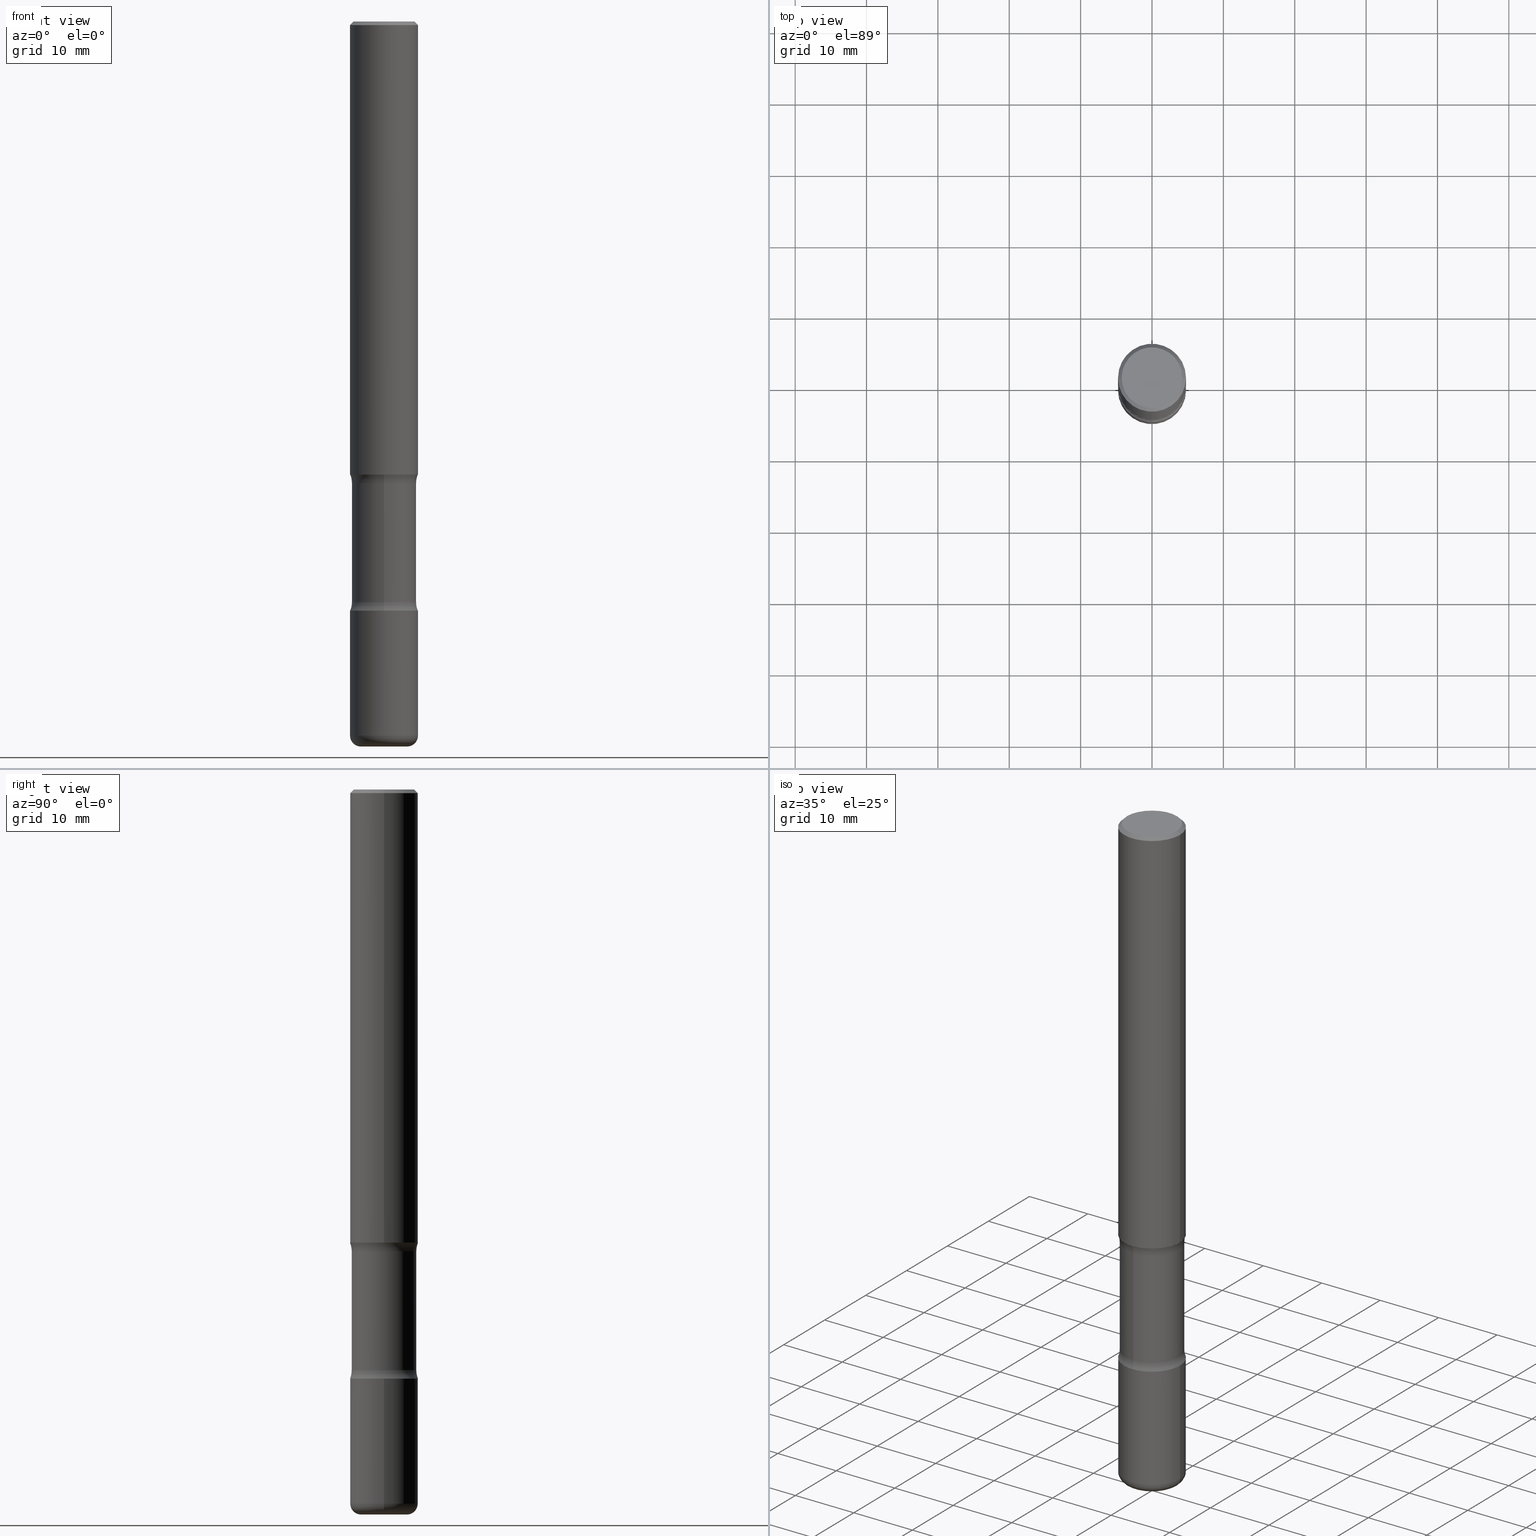
[diagram: canonical four-view strip — front | top / right | iso, engineering-drawing reading convention]
A machine part, canonical four-view strip (front | top / right | iso — engineering-drawing reading convention). The complete STEP part file that produces these views, byte-faithful:
ISO-10303-21;
HEADER;
FILE_DESCRIPTION (( 'STEP AP203' ),
    '1' );
FILE_NAME ('37847.STEP',
    '2024-03-02T00:45:37',
    ( '' ),
    ( '' ),
    'SwSTEP 2.0',
    'SolidWorks 2023',
    '' );
FILE_SCHEMA (( 'CONFIG_CONTROL_DESIGN' ));
ENDSEC;

DATA;
#1 = EDGE_LOOP ( 'NONE', ( #232, #52, #144, #310 ) ) ;
#2 = ADVANCED_FACE ( 'NONE', ( #99 ), #320, .F. ) ;
#3 = VERTEX_POINT ( 'NONE', #521 ) ;
#4 = EDGE_LOOP ( 'NONE', ( #472, #396 ) ) ;
#5 = ORIENTED_EDGE ( 'NONE', *, *, #162, .T. ) ;
#6 = APPLICATION_CONTEXT ( 'configuration controlled 3d designs of mechanical parts and assemblies' ) ;
#7 = VERTEX_POINT ( 'NONE', #134 ) ;
#8 = PRODUCT_DEFINITION_FORMATION_WITH_SPECIFIED_SOURCE ( 'ANY', '', #39, .NOT_KNOWN. ) ;
#9 = CARTESIAN_POINT ( 'NONE',  ( 2.116710561673727694E-15, 0.3031249999999888201, -3.202504112020092997 ) ) ;
#10 = DIRECTION ( 'NONE',  ( 6.982962677686266711E-15, 1.000000000000000000, -2.913971193241878794E-15 ) ) ;
#11 = CARTESIAN_POINT ( 'NONE',  ( -1.286343374582083282E-15, -0.1875000000000114075, -3.250000000000000000 ) ) ;
#12 = DATE_AND_TIME ( #213, #266 ) ;
#13 = ORIENTED_EDGE ( 'NONE', *, *, #151, .T. ) ;
#14 = CARTESIAN_POINT ( 'NONE',  ( -0.1275000000000001132, -1.285049448694786508E-14, -3.939999999999999947 ) ) ;
#15 = DIRECTION ( 'NONE',  ( -2.445468806185136597E-29, 3.491481338843145583E-15, 1.000000000000000000 ) ) ;
#16 = CARTESIAN_POINT ( 'NONE',  ( 6.158285255761511137E-29, -8.996978653423909512E-15, -2.547495887979908780 ) ) ;
#17 = PERSON_AND_ORGANIZATION ( #428, #464 ) ;
#18 = EDGE_LOOP ( 'NONE', ( #339, #273, #377, #417 ) ) ;
#19 = CARTESIAN_POINT ( 'NONE',  ( -0.1875000000000000833, -1.121960778359092137E-14, -3.250000000000000444 ) ) ;
#20 = CARTESIAN_POINT ( 'NONE',  ( 1.243840226962927197E-15, 0.1781249999999909572, -2.547495887979909224 ) ) ;
#21 = LINE ( 'NONE', #207, #400 ) ;
#22 = CIRCLE ( 'NONE', #308, 0.05999999999999995615 ) ;
#23 = AXIS2_PLACEMENT_3D ( 'NONE', #41, #170, #127 ) ;
#24 = APPROVAL ( #216, 'UNSPECIFIED' ) ;
#25 = DIRECTION ( 'NONE',  ( 2.558681667686983511E-29, -3.329354077496592524E-15, -1.000000000000000000 ) ) ;
#26 = PERSON_AND_ORGANIZATION ( #428, #464 ) ;
#27 = ORIENTED_EDGE ( 'NONE', *, *, #306, .T. ) ;
#28 = DIRECTION ( 'NONE',  ( 2.558681667686983511E-29, -3.329354077496592524E-15, -1.000000000000000000 ) ) ;
#29 = ORIENTED_EDGE ( 'NONE', *, *, #268, .F. ) ;
#30 = CARTESIAN_POINT ( 'NONE',  ( 9.635147096369438236E-29, -1.375643647504199401E-14, -3.939999999999999947 ) ) ;
#31 = DATE_TIME_ROLE ( 'classification_date' ) ;
#32 = ORIENTED_EDGE ( 'NONE', *, *, #510, .F. ) ;
#33 = ADVANCED_FACE ( 'NONE', ( #359 ), #236, .T. ) ;
#34 = ORIENTED_EDGE ( 'NONE', *, *, #264, .F. ) ;
#35 = VECTOR ( 'NONE', #255, 39.37007874015748143 ) ;
#36 = FACE_OUTER_BOUND ( 'NONE', #100, .T. ) ;
#37 = CARTESIAN_POINT ( 'NONE',  ( 9.635147096369438236E-29, -1.375643647504199401E-14, -3.939999999999999947 ) ) ;
#38 = ADVANCED_FACE ( 'NONE', ( #57 ), #379, .T. ) ;
#39 = PRODUCT ( '37847', '37847', '', ( #90 ) ) ;
#40 = CIRCLE ( 'NONE', #470, 0.1875000000000001110 ) ;
#41 = CARTESIAN_POINT ( 'NONE',  ( 0.000000000000000000, 0.000000000000000000, 0.000000000000000000 ) ) ;
#42 = CONICAL_SURFACE ( 'NONE', #89, 0.1874999999999999167, 0.7853981633974472798 ) ;
#43 = ADVANCED_BREP_SHAPE_REPRESENTATION ( '37847', ( #335, #131, #318, #499 ), #388 ) ;
#44 = DIRECTION ( 'NONE',  ( 1.000000000000000000, -6.982962677686265922E-15, 0.000000000000000000 ) ) ;
#45 = ADVANCED_FACE ( 'NONE', ( #482 ), #91, .T. ) ;
#46 = APPLICATION_PROTOCOL_DEFINITION ( 'international standard', 'config_control_design', 1994, #75 ) ;
#47 = AXIS2_PLACEMENT_3D ( 'NONE', #350, #525, #233 ) ;
#48 = DIRECTION ( 'NONE',  ( -2.445468806185136597E-29, 3.491481338843145583E-15, 1.000000000000000000 ) ) ;
#49 = CC_DESIGN_APPROVAL ( #133, ( #237 ) ) ;
#50 = ORIENTED_EDGE ( 'NONE', *, *, #347, .F. ) ;
#51 = DIRECTION ( 'NONE',  ( -2.445468806185136597E-29, 3.491481338843145583E-15, 1.000000000000000000 ) ) ;
#52 = ORIENTED_EDGE ( 'NONE', *, *, #264, .T. ) ;
#53 = DIRECTION ( 'NONE',  ( 1.000000000000000000, -6.982962677686265922E-15, 0.000000000000000000 ) ) ;
#54 = ORIENTED_EDGE ( 'NONE', *, *, #290, .T. ) ;
#55 = DIMENSIONAL_EXPONENTS ( 1.000000000000000000, 0.000000000000000000, 0.000000000000000000, 0.000000000000000000, 0.000000000000000000, 0.000000000000000000, 0.000000000000000000 ) ;
#56 = DIRECTION ( 'NONE',  ( 6.982962677686265133E-15, 1.000000000000000000, -3.067338098149349483E-15 ) ) ;
#57 = FACE_OUTER_BOUND ( 'NONE', #257, .T. ) ;
#58 = SHAPE_DEFINITION_REPRESENTATION ( #174, #43 ) ;
#59 = AXIS2_PLACEMENT_3D ( 'NONE', #513, #397, #10 ) ;
#60 = ORIENTED_EDGE ( 'NONE', *, *, #429, .F. ) ;
#61 = DIRECTION ( 'NONE',  ( 2.558681667686983511E-29, -3.329354077496592524E-15, -1.000000000000000000 ) ) ;
#62 = CARTESIAN_POINT ( 'NONE',  ( 1.309305502066255275E-15, 0.1874999999999887867, -3.250000000000001332 ) ) ;
#63 = APPROVAL_DATE_TIME ( #545, #24 ) ;
#64 = EDGE_CURVE ( 'NONE', #432, #272, #40, .T. ) ;
#65 = CARTESIAN_POINT ( 'NONE',  ( 0.1874999999999999167, -1.356173001359024677E-15, -0.02000000000000006981 ) ) ;
#66 = DIRECTION ( 'NONE',  ( 2.438088387897960049E-29, -3.491481338843145188E-15, -1.000000000000000000 ) ) ;
#67 = APPROVAL_DATE_TIME ( #342, #430 ) ;
#68 = ORIENTED_EDGE ( 'NONE', *, *, #516, .F. ) ;
#69 = EDGE_CURVE ( 'NONE', #234, #304, #325, .T. ) ;
#70 = DIRECTION ( 'NONE',  ( 2.558681667686983511E-29, -3.329354077496592524E-15, -1.000000000000000000 ) ) ;
#71 = TOROIDAL_SURFACE ( 'NONE', #317, 0.3031249999999999778, 0.1250000000000000278 ) ;
#72 = DIRECTION ( 'NONE',  ( 6.982962677686266711E-15, 1.000000000000000000, -2.913971193241879583E-15 ) ) ;
#73 = CARTESIAN_POINT ( 'NONE',  ( 7.947773620101696182E-29, -1.134731435124022600E-14, -3.250000000000000444 ) ) ;
#74 = ORIENTED_EDGE ( 'NONE', *, *, #425, .F. ) ;
#75 = APPLICATION_CONTEXT ( 'configuration controlled 3d designs of mechanical parts and assemblies' ) ;
#76 = ORIENTED_EDGE ( 'NONE', *, *, #109, .F. ) ;
#77 = CC_DESIGN_DATE_AND_TIME_ASSIGNMENT ( #148, #31, ( #514 ) ) ;
#78 = CARTESIAN_POINT ( 'NONE',  ( -0.1874999999999999167, 1.239475875289311118E-15, -0.02000000000000006981 ) ) ;
#79 = CARTESIAN_POINT ( 'NONE',  ( 4.890937612370289799E-31, -6.982962677686315028E-17, -0.02000000000000006981 ) ) ;
#80 = CLOSED_SHELL ( 'NONE', ( #139, #481, #33, #414, #274, #227 ) ) ;
#81 = AXIS2_PLACEMENT_3D ( 'NONE', #555, #466, #181 ) ;
#82 = CC_DESIGN_APPROVAL ( #430, ( #514 ) ) ;
#83 = CYLINDRICAL_SURFACE ( 'NONE', #433, 0.1875000000000001110 ) ;
#84 = ADVANCED_FACE ( 'NONE', ( #191 ), #106, .F. ) ;
#85 = DIRECTION ( 'NONE',  ( -1.000000000000000000, 6.982962677686265922E-15, -4.883557194083112901E-29 ) ) ;
#86 = ADVANCED_FACE ( 'NONE', ( #474 ), #552, .F. ) ;
#87 = AXIS2_PLACEMENT_3D ( 'NONE', #294, #495, #72 ) ;
#88 =( LENGTH_UNIT ( ) NAMED_UNIT ( * ) SI_UNIT ( $, .METRE. ) );
#89 = AXIS2_PLACEMENT_3D ( 'NONE', #79, #344, #463 ) ;
#90 = MECHANICAL_CONTEXT ( 'NONE', #75, 'mechanical' ) ;
#91 = PLANE ( 'NONE',  #258 ) ;
#92 = EDGE_LOOP ( 'NONE', ( #448, #413, #492, #97 ) ) ;
#93 = DIRECTION ( 'NONE',  ( -2.445468806185136597E-29, 3.491481338843145583E-15, 1.000000000000000000 ) ) ;
#94 = ORIENTED_EDGE ( 'NONE', *, *, #69, .T. ) ;
#95 = CIRCLE ( 'NONE', #410, 0.1781249999999999223 ) ;
#96 = DIRECTION ( 'NONE',  ( 2.558681667686983511E-29, -3.329354077496592524E-15, -1.000000000000000000 ) ) ;
#97 = ORIENTED_EDGE ( 'NONE', *, *, #306, .F. ) ;
#98 = PERSON_AND_ORGANIZATION ( #428, #464 ) ;
#99 = FACE_OUTER_BOUND ( 'NONE', #179, .T. ) ;
#100 = EDGE_LOOP ( 'NONE', ( #479, #542, #523, #138 ) ) ;
#101 = CARTESIAN_POINT ( 'NONE',  ( 1.243840226962943961E-15, 0.1781249999999887368, -3.202504112020092553 ) ) ;
#102 = CARTESIAN_POINT ( 'NONE',  ( 4.890937612370289799E-31, -6.982962677686315028E-17, -0.02000000000000006981 ) ) ;
#103 = VERTEX_POINT ( 'NONE', #519 ) ;
#104 = CARTESIAN_POINT ( 'NONE',  ( 7.831623907624765469E-29, -1.118148334468659010E-14, -3.202504112020091664 ) ) ;
#105 = CYLINDRICAL_SURFACE ( 'NONE', #166, 0.1781249999999999500 ) ;
#106 = TOROIDAL_SURFACE ( 'NONE', #533, 0.3031249999999999778, 0.1250000000000000278 ) ;
#107 = EDGE_CURVE ( 'NONE', #304, #234, #184, .T. ) ;
#108 = DIRECTION ( 'NONE',  ( 0.7071067811865467956, -7.319954787623254468E-15, -0.7071067811865482389 ) ) ;
#109 = EDGE_CURVE ( 'NONE', #3, #189, #357, .T. ) ;
#110 = FACE_OUTER_BOUND ( 'NONE', #520, .T. ) ;
#111 = LINE ( 'NONE', #287, #507 ) ;
#112 = PERSON_AND_ORGANIZATION_ROLE ( 'classification_officer' ) ;
#113 = VERTEX_POINT ( 'NONE', #20 ) ;
#114 = ADVANCED_FACE ( 'NONE', ( #214 ), #158, .F. ) ;
#115 = DIRECTION ( 'NONE',  ( 1.000000000000000000, -6.982962677686265922E-15, 4.876176775795935793E-29 ) ) ;
#116 = FACE_OUTER_BOUND ( 'NONE', #558, .T. ) ;
#117 = CYLINDRICAL_SURFACE ( 'NONE', #194, 0.1875000000000000278 ) ;
#118 = DIRECTION ( 'NONE',  ( 6.860497997771532351E-15, 1.000000000000000000, 0.000000000000000000 ) ) ;
#119 = COORDINATED_UNIVERSAL_TIME_OFFSET ( 5, 0, .BEHIND. ) ;
#120 = VECTOR ( 'NONE', #108, 39.37007874015748143 ) ;
#121 = EDGE_CURVE ( 'NONE', #311, #447, #462, .T. ) ;
#122 = AXIS2_PLACEMENT_3D ( 'NONE', #455, #373, #150 ) ;
#123 = EDGE_CURVE ( 'NONE', #272, #234, #146, .T. ) ;
#124 = CARTESIAN_POINT ( 'NONE',  ( 9.635147096369438236E-29, -1.375643647504199401E-14, -3.939999999999999947 ) ) ;
#125 = CARTESIAN_POINT ( 'NONE',  ( 0.1875000000000000833, -1.265661985330640259E-14, -3.250000000000000444 ) ) ;
#126 = PERSON_AND_ORGANIZATION ( #428, #464 ) ;
#127 = DIRECTION ( 'NONE',  ( 1.000000000000000000, -6.982962677686265922E-15, 4.876176775795935793E-29 ) ) ;
#128 = AXIS2_PLACEMENT_3D ( 'NONE', #143, #434, #137 ) ;
#129 = CIRCLE ( 'NONE', #486, 0.1674999999999998990 ) ;
#130 = ORIENTED_EDGE ( 'NONE', *, *, #539, .F. ) ;
#131 = MANIFOLD_SOLID_BREP ( 'Body-Move/Copy2[2]', #80 ) ;
#132 = CARTESIAN_POINT ( 'NONE',  ( 6.028762369336457147E-29, -8.850298793117778356E-15, -2.500000000000000000 ) ) ;
#133 = APPROVAL ( #354, 'UNSPECIFIED' ) ;
#134 = CARTESIAN_POINT ( 'NONE',  ( -0.1275000000000001132, -1.274207610638512978E-14, -4.000000000000000000 ) ) ;
#135 = DIRECTION ( 'NONE',  ( -2.445468806185136597E-29, 3.491481338843145583E-15, 1.000000000000000000 ) ) ;
#136 = ORIENTED_EDGE ( 'NONE', *, *, #554, .F. ) ;
#137 = DIRECTION ( 'NONE',  ( -1.000000000000000000, 6.982962677686265922E-15, 0.000000000000000000 ) ) ;
#138 = ORIENTED_EDGE ( 'NONE', *, *, #465, .F. ) ;
#139 = ADVANCED_FACE ( 'NONE', ( #252 ), #117, .T. ) ;
#140 = AXIS2_PLACEMENT_3D ( 'NONE', #14, #280, #442 ) ;
#141 = APPROVAL_PERSON_ORGANIZATION ( #98, #133, #478 ) ;
#142 = ORIENTED_EDGE ( 'NONE', *, *, #367, .T. ) ;
#143 = CARTESIAN_POINT ( 'NONE',  ( 4.890937612370289799E-31, -6.982962677686315028E-17, -0.02000000000000006981 ) ) ;
#144 = ORIENTED_EDGE ( 'NONE', *, *, #347, .T. ) ;
#145 = CARTESIAN_POINT ( 'NONE',  ( 6.113672015462842613E-29, -8.728703347107864943E-15, -2.500000000000000000 ) ) ;
#146 = LINE ( 'NONE', #154, #281 ) ;
#147 = LINE ( 'NONE', #78, #35 ) ;
#148 = DATE_AND_TIME ( #297, #352 ) ;
#149 = LINE ( 'NONE', #328, #386 ) ;
#150 = DIRECTION ( 'NONE',  ( 6.982962677686265133E-15, 1.000000000000000000, -3.067338098149349483E-15 ) ) ;
#151 = EDGE_CURVE ( 'NONE', #113, #103, #345, .T. ) ;
#152 = DATE_TIME_ROLE ( 'creation_date' ) ;
#153 = AXIS2_PLACEMENT_3D ( 'NONE', #37, #224, #506 ) ;
#154 = CARTESIAN_POINT ( 'NONE',  ( -0.1875000000000000278, 1.332267629550188046E-15, -9.223003294227947991E-30 ) ) ;
#155 = CARTESIAN_POINT ( 'NONE',  ( 9.781875224740546387E-29, -1.396592535537258233E-14, -4.000000000000000000 ) ) ;
#156 = APPROVAL_DATE_TIME ( #456, #133 ) ;
#157 = VERTEX_POINT ( 'NONE', #163 ) ;
#158 = PLANE ( 'NONE',  #177 ) ;
#159 = DIRECTION ( 'NONE',  ( -2.445468806185136597E-29, 3.491481338843145583E-15, 1.000000000000000000 ) ) ;
#160 = COORDINATED_UNIVERSAL_TIME_OFFSET ( 5, 0, .BEHIND. ) ;
#161 = ORIENTED_EDGE ( 'NONE', *, *, #121, .T. ) ;
#162 = EDGE_CURVE ( 'NONE', #272, #432, #440, .T. ) ;
#163 = CARTESIAN_POINT ( 'NONE',  ( -0.1674999999999998990, 1.204561061900880061E-15, -8.301862719484106184E-30 ) ) ;
#164 = FACE_OUTER_BOUND ( 'NONE', #508, .T. ) ;
#165 = APPROVAL_STATUS ( 'not_yet_approved' ) ;
#166 = AXIS2_PLACEMENT_3D ( 'NONE', #362, #25, #248 ) ;
#167 = PRODUCT_RELATED_PRODUCT_CATEGORY ( 'detail', '', ( #39 ) ) ;
#168 = CIRCLE ( 'NONE', #547, 0.1275000000000001132 ) ;
#169 = ORIENTED_EDGE ( 'NONE', *, *, #121, .F. ) ;
#170 = DIRECTION ( 'NONE',  ( -2.445468806185136597E-29, 3.491481338843145583E-15, 1.000000000000000000 ) ) ;
#171 = EDGE_LOOP ( 'NONE', ( #34, #142, #188, #68 ) ) ;
#172 = ADVANCED_FACE ( 'NONE', ( #198 ), #421, .T. ) ;
#173 = CARTESIAN_POINT ( 'NONE',  ( 7.947773620101696182E-29, -1.134731435124022600E-14, -3.250000000000000444 ) ) ;
#174 = PRODUCT_DEFINITION_SHAPE ( 'NONE', 'NONE',  #237 ) ;
#175 = UNCERTAINTY_MEASURE_WITH_UNIT (LENGTH_MEASURE( 1.000000000000000082E-05 ), #385, 'distance_accuracy_value', 'NONE');
#176 = EDGE_LOOP ( 'NONE', ( #29, #223, #557, #476 ) ) ;
#177 = AXIS2_PLACEMENT_3D ( 'NONE', #238, #454, #405 ) ;
#178 = CIRCLE ( 'NONE', #427, 0.1250000000000000278 ) ;
#179 = EDGE_LOOP ( 'NONE', ( #192, #27 ) ) ;
#180 = EDGE_CURVE ( 'NONE', #432, #304, #458, .T. ) ;
#181 = DIRECTION ( 'NONE',  ( 1.000000000000000000, -6.982962677686266711E-15, 4.876176775795935793E-29 ) ) ;
#182 = CC_DESIGN_PERSON_AND_ORGANIZATION_ASSIGNMENT ( #541, #112, ( #514 ) ) ;
#183 = DIRECTION ( 'NONE',  ( 1.000000000000000000, 0.000000000000000000, 0.000000000000000000 ) ) ;
#184 = CIRCLE ( 'NONE', #505, 0.1874999999999999167 ) ;
#185 = APPROVAL_PERSON_ORGANIZATION ( #26, #430, #200 ) ;
#186 = AXIS2_PLACEMENT_3D ( 'NONE', #450, #203, #300 ) ;
#187 = VERTEX_POINT ( 'NONE', #535 ) ;
#188 = ORIENTED_EDGE ( 'NONE', *, *, #109, .T. ) ;
#189 = VERTEX_POINT ( 'NONE', #332 ) ;
#190 = APPLICATION_PROTOCOL_DEFINITION ( 'international standard', 'config_control_design', 1994, #6 ) ;
#191 = FACE_OUTER_BOUND ( 'NONE', #171, .T. ) ;
#192 = ORIENTED_EDGE ( 'NONE', *, *, #423, .T. ) ;
#193 = EDGE_LOOP ( 'NONE', ( #60, #211 ) ) ;
#194 = AXIS2_PLACEMENT_3D ( 'NONE', #206, #15, #415 ) ;
#195 = ORIENTED_EDGE ( 'NONE', *, *, #270, .F. ) ;
#196 = ORIENTED_EDGE ( 'NONE', *, *, #290, .F. ) ;
#197 = DIRECTION ( 'NONE',  ( -6.982962677686267499E-15, -1.000000000000000000, 0.000000000000000000 ) ) ;
#198 = FACE_OUTER_BOUND ( 'NONE', #176, .T. ) ;
#199 = FACE_OUTER_BOUND ( 'NONE', #210, .T. ) ;
#200 = APPROVAL_ROLE ( '' ) ;
#201 = VERTEX_POINT ( 'NONE', #493 ) ;
#202 = DIRECTION ( 'NONE',  ( 1.000000000000000000, -6.982962677686265922E-15, 4.876176775795935793E-29 ) ) ;
#203 = DIRECTION ( 'NONE',  ( 1.000000000000000000, -6.860497997771530774E-15, 4.842784365940769113E-29 ) ) ;
#204 = CALENDAR_DATE ( 2024, 1, 3 ) ;
#205 = PLANE ( 'NONE',  #296 ) ;
#206 = CARTESIAN_POINT ( 'NONE',  ( 0.000000000000000000, 0.000000000000000000, 0.000000000000000000 ) ) ;
#207 = CARTESIAN_POINT ( 'NONE',  ( -0.1875000000000001110, 1.332267629550188637E-15, -9.223003294227953596E-30 ) ) ;
#208 = AXIS2_PLACEMENT_3D ( 'NONE', #390, #48, #229 ) ;
#209 = CIRCLE ( 'NONE', #534, 0.1275000000000001132 ) ;
#210 = EDGE_LOOP ( 'NONE', ( #395, #313, #556, #330 ) ) ;
#211 = ORIENTED_EDGE ( 'NONE', *, *, #331, .F. ) ;
#212 = DIRECTION ( 'NONE',  ( 6.982962677686266711E-15, 1.000000000000000000, -2.913971193241879583E-15 ) ) ;
#213 = CALENDAR_DATE ( 2024, 1, 3 ) ;
#214 = FACE_OUTER_BOUND ( 'NONE', #276, .T. ) ;
#215 = DIRECTION ( 'NONE',  ( 1.000000000000000000, -6.982962677686269866E-15, 0.000000000000000000 ) ) ;
#216 = APPROVAL_STATUS ( 'not_yet_approved' ) ;
#217 = CLOSED_SHELL ( 'NONE', ( #503, #38, #45, #172, #524, #2 ) ) ;
#218 = LOCAL_TIME ( 19, 45, 37.00000000000000000, #412 ) ;
#219 = DIRECTION ( 'NONE',  ( -6.982962677686267499E-15, -1.000000000000000000, 0.000000000000000000 ) ) ;
#220 = EDGE_CURVE ( 'NONE', #103, #551, #149, .T. ) ;
#221 = LENGTH_MEASURE_WITH_UNIT ( LENGTH_MEASURE( 0.02539999999999999897 ), #88 );
#222 = VECTOR ( 'NONE', #370, 39.37007874015748143 ) ;
#223 = ORIENTED_EDGE ( 'NONE', *, *, #331, .T. ) ;
#224 = DIRECTION ( 'NONE',  ( -2.445468806185136597E-29, 3.491481338843145583E-15, 1.000000000000000000 ) ) ;
#225 = DIRECTION ( 'NONE',  ( 6.982962677686266711E-15, 1.000000000000000000, -3.329354077496592130E-15 ) ) ;
#226 = CIRCLE ( 'NONE', #251, 0.1875000000000001388 ) ;
#227 = ADVANCED_FACE ( 'NONE', ( #110 ), #286, .T. ) ;
#228 = PERSON_AND_ORGANIZATION_ROLE ( 'design_owner' ) ;
#229 = DIRECTION ( 'NONE',  ( 1.000000000000000000, -6.982962677686269866E-15, 4.883557194083114022E-29 ) ) ;
#230 = ORIENTED_EDGE ( 'NONE', *, *, #539, .T. ) ;
#231 = DIRECTION ( 'NONE',  ( -1.000000000000000000, 6.982962677686265922E-15, -4.876176775795935793E-29 ) ) ;
#232 = ORIENTED_EDGE ( 'NONE', *, *, #220, .F. ) ;
#233 = DIRECTION ( 'NONE',  ( -1.000000000000000000, 6.982962677686265922E-15, -4.876176775795935793E-29 ) ) ;
#234 = VERTEX_POINT ( 'NONE', #408 ) ;
#235 = CARTESIAN_POINT ( 'NONE',  ( -0.1875000000000000833, -3.066998857392172722E-15, -2.500000000000000000 ) ) ;
#236 = CONICAL_SURFACE ( 'NONE', #128, 0.1874999999999999167, 0.7853981633974472798 ) ;
#237 = PRODUCT_DEFINITION ( 'UNKNOWN', '', #8, #436 ) ;
#238 = CARTESIAN_POINT ( 'NONE',  ( 6.113672015462842613E-29, -8.728703347107864943E-15, -2.500000000000000000 ) ) ;
#239 = AXIS2_PLACEMENT_3D ( 'NONE', #173, #460, #467 ) ;
#240 = COORDINATED_UNIVERSAL_TIME_OFFSET ( 5, 0, .BEHIND. ) ;
#241 = VERTEX_POINT ( 'NONE', #101 ) ;
#242 = LINE ( 'NONE', #245, #120 ) ;
#243 = DIRECTION ( 'NONE',  ( -2.445468806185136877E-29, 3.491481338843145188E-15, 1.000000000000000000 ) ) ;
#244 = PLANE ( 'NONE',  #422 ) ;
#245 = CARTESIAN_POINT ( 'NONE',  ( 0.1874999999999999167, -1.356173001359024677E-15, -0.02000000000000006981 ) ) ;
#246 = DIRECTION ( 'NONE',  ( -2.445468806185136877E-29, 3.491481338843145188E-15, 1.000000000000000000 ) ) ;
#247 = EDGE_LOOP ( 'NONE', ( #196, #74, #532, #94 ) ) ;
#248 = DIRECTION ( 'NONE',  ( 6.982962677686266711E-15, 1.000000000000000000, -3.067338098149349089E-15 ) ) ;
#249 = AXIS2_PLACEMENT_3D ( 'NONE', #277, #438, #364 ) ;
#250 = CALENDAR_DATE ( 2024, 1, 3 ) ;
#251 = AXIS2_PLACEMENT_3D ( 'NONE', #30, #531, #329 ) ;
#252 = FACE_OUTER_BOUND ( 'NONE', #18, .T. ) ;
#253 = DIRECTION ( 'NONE',  ( 1.000000000000000000, -6.982962677686265922E-15, 4.876176775795935793E-29 ) ) ;
#254 = ORIENTED_EDGE ( 'NONE', *, *, #180, .T. ) ;
#255 = DIRECTION ( 'NONE',  ( -0.7071067811865467956, 2.468850131082249172E-15, -0.7071067811865482389 ) ) ;
#256 = EDGE_CURVE ( 'NONE', #355, #187, #22, .T. ) ;
#257 = EDGE_LOOP ( 'NONE', ( #321, #420, #136, #363 ) ) ;
#258 = AXIS2_PLACEMENT_3D ( 'NONE', #315, #515, #231 ) ;
#259 = CC_DESIGN_APPROVAL ( #24, ( #8 ) ) ;
#260 = DIRECTION ( 'NONE',  ( -2.445468806185136597E-29, 3.491481338843145583E-15, 1.000000000000000000 ) ) ;
#261 = CARTESIAN_POINT ( 'NONE',  ( -1.254184790217529307E-15, -0.1781250000000111355, -3.202504112020091220 ) ) ;
#262 = EDGE_CURVE ( 'NONE', #241, #551, #95, .T. ) ;
#263 = DIRECTION ( 'NONE',  ( 6.982962677686266711E-15, 1.000000000000000000, -3.067338098149349089E-15 ) ) ;
#264 = EDGE_CURVE ( 'NONE', #103, #113, #475, .T. ) ;
#265 = AXIS2_PLACEMENT_3D ( 'NONE', #104, #404, #529 ) ;
#266 = LOCAL_TIME ( 19, 45, 37.00000000000000000, #240 ) ;
#267 = VERTEX_POINT ( 'NONE', #19 ) ;
#268 = EDGE_CURVE ( 'NONE', #7, #201, #340, .T. ) ;
#269 =( NAMED_UNIT ( * ) SI_UNIT ( $, .STERADIAN. ) SOLID_ANGLE_UNIT ( ) );
#270 = EDGE_CURVE ( 'NONE', #447, #241, #451, .T. ) ;
#271 = AXIS2_PLACEMENT_3D ( 'NONE', #338, #449, #500 ) ;
#272 = VERTEX_POINT ( 'NONE', #235 ) ;
#273 = ORIENTED_EDGE ( 'NONE', *, *, #123, .T. ) ;
#274 = ADVANCED_FACE ( 'NONE', ( #361 ), #205, .F. ) ;
#275 = ORIENTED_EDGE ( 'NONE', *, *, #270, .T. ) ;
#276 = EDGE_LOOP ( 'NONE', ( #32, #76 ) ) ;
#277 = CARTESIAN_POINT ( 'NONE',  ( 6.150289227201164007E-29, -9.008429421428009851E-15, -2.547495887979908780 ) ) ;
#278 = CARTESIAN_POINT ( 'NONE',  ( 6.158285255761511137E-29, -8.996978653423909512E-15, -2.547495887979908780 ) ) ;
#279 = ORIENTED_EDGE ( 'NONE', *, *, #424, .F. ) ;
#280 = DIRECTION ( 'NONE',  ( 7.105427357601001859E-15, 1.000000000000000000, -3.491481338843145583E-15 ) ) ;
#281 = VECTOR ( 'NONE', #243, 39.37007874015748143 ) ;
#282 = CIRCLE ( 'NONE', #122, 0.1781249999999999223 ) ;
#283 = DIRECTION ( 'NONE',  ( 2.558681667686983511E-29, -3.329354077496592524E-15, -1.000000000000000000 ) ) ;
#284 = PERSON_AND_ORGANIZATION ( #428, #464 ) ;
#285 = CARTESIAN_POINT ( 'NONE',  ( 7.826246762236988201E-29, -1.118918372292999451E-14, -3.202504112020091664 ) ) ;
#286 = CYLINDRICAL_SURFACE ( 'NONE', #368, 0.1875000000000000278 ) ;
#287 = CARTESIAN_POINT ( 'NONE',  ( 0.1875000000000001110, -1.309305502066175797E-15, 9.142831454617385217E-30 ) ) ;
#288 = CALENDAR_DATE ( 2024, 1, 3 ) ;
#289 = ORIENTED_EDGE ( 'NONE', *, *, #123, .F. ) ;
#290 = EDGE_CURVE ( 'NONE', #316, #304, #242, .T. ) ;
#291 = CARTESIAN_POINT ( 'NONE',  ( 0.000000000000000000, 0.000000000000000000, 0.000000000000000000 ) ) ;
#292 = DIRECTION ( 'NONE',  ( -1.000000000000000000, 6.982962677686265922E-15, -4.876176775795935793E-29 ) ) ;
#293 = CC_DESIGN_DATE_AND_TIME_ASSIGNMENT ( #12, #152, ( #237 ) ) ;
#294 = CARTESIAN_POINT ( 'NONE',  ( 7.947773620101696182E-29, -1.134731435124022600E-14, -3.250000000000000444 ) ) ;
#295 = CARTESIAN_POINT ( 'NONE',  ( 7.947773620101696182E-29, -1.134731435124022600E-14, -3.250000000000000444 ) ) ;
#296 = AXIS2_PLACEMENT_3D ( 'NONE', #145, #322, #202 ) ;
#297 = CALENDAR_DATE ( 2024, 1, 3 ) ;
#298 = AXIS2_PLACEMENT_3D ( 'NONE', #469, #85, #219 ) ;
#299 = DIRECTION ( 'NONE',  ( 1.000000000000000000, -6.982962677686269866E-15, 4.883557194083114022E-29 ) ) ;
#300 = DIRECTION ( 'NONE',  ( 6.860497997771529985E-15, 1.000000000000000000, 0.000000000000000000 ) ) ;
#301 = ADVANCED_FACE ( 'NONE', ( #484 ), #498, .F. ) ;
#302 = AXIS2_PLACEMENT_3D ( 'NONE', #543, #28, #374 ) ;
#303 = AXIS2_PLACEMENT_3D ( 'NONE', #348, #418, #263 ) ;
#304 = VERTEX_POINT ( 'NONE', #65 ) ;
#305 = ADVANCED_FACE ( 'NONE', ( #406 ), #105, .T. ) ;
#306 = EDGE_CURVE ( 'NONE', #267, #437, #399, .T. ) ;
#307 = CYLINDRICAL_SURFACE ( 'NONE', #303, 0.1781249999999999500 ) ;
#308 = AXIS2_PLACEMENT_3D ( 'NONE', #401, #326, #488 ) ;
#309 = CIRCLE ( 'NONE', #23, 0.1674999999999998990 ) ;
#310 = ORIENTED_EDGE ( 'NONE', *, *, #387, .F. ) ;
#311 = VERTEX_POINT ( 'NONE', #11 ) ;
#312 = CC_DESIGN_PERSON_AND_ORGANIZATION_ASSIGNMENT ( #407, #491, ( #8 ) ) ;
#313 = ORIENTED_EDGE ( 'NONE', *, *, #151, .F. ) ;
#314 =( NAMED_UNIT ( * ) PLANE_ANGLE_UNIT ( ) SI_UNIT ( $, .RADIAN. ) );
#315 = CARTESIAN_POINT ( 'NONE',  ( 9.781875224740546387E-29, -1.396592535537258233E-14, -4.000000000000000000 ) ) ;
#316 = VERTEX_POINT ( 'NONE', #366 ) ;
#317 = AXIS2_PLACEMENT_3D ( 'NONE', #16, #283, #411 ) ;
#318 = MANIFOLD_SOLID_BREP ( 'Body-Move/Copy2[4]', #351 ) ;
#319 = CARTESIAN_POINT ( 'NONE',  ( 4.890937612370289799E-31, -6.982962677686315028E-17, -0.02000000000000006981 ) ) ;
#320 = PLANE ( 'NONE',  #47 ) ;
#321 = ORIENTED_EDGE ( 'NONE', *, *, #429, .T. ) ;
#322 = DIRECTION ( 'NONE',  ( -2.438088387897960049E-29, 3.491481338843145188E-15, 1.000000000000000000 ) ) ;
#323 = CARTESIAN_POINT ( 'NONE',  ( 1.243840226962964471E-15, 0.1781249999999861278, -4.000000000000000888 ) ) ;
#324 = COORDINATED_UNIVERSAL_TIME_OFFSET ( 5, 0, .BEHIND. ) ;
#325 = CIRCLE ( 'NONE', #391, 0.1874999999999999167 ) ;
#326 = DIRECTION ( 'NONE',  ( -6.982962677686266711E-15, -1.000000000000000000, 3.491481338843145583E-15 ) ) ;
#327 = CIRCLE ( 'NONE', #471, 0.1875000000000000833 ) ;
#328 = CARTESIAN_POINT ( 'NONE',  ( -1.222026205852954821E-15, -0.1781250000000138001, -3.999999999999999556 ) ) ;
#329 = DIRECTION ( 'NONE',  ( 1.000000000000000000, -6.982962677686267499E-15, 0.000000000000000000 ) ) ;
#330 = ORIENTED_EDGE ( 'NONE', *, *, #510, .T. ) ;
#331 = EDGE_CURVE ( 'NONE', #7, #355, #168, .T. ) ;
#332 = CARTESIAN_POINT ( 'NONE',  ( 1.309305502066236145E-15, 0.1874999999999913125, -2.500000000000000444 ) ) ;
#333 = DIRECTION ( 'NONE',  ( -2.445468806185136597E-29, 3.491481338843145583E-15, 1.000000000000000000 ) ) ;
#334 = PERSON_AND_ORGANIZATION_ROLE ( 'design_supplier' ) ;
#335 = MANIFOLD_SOLID_BREP ( 'Body-Move/Copy2[1]', #217 ) ;
#336 = DIRECTION ( 'NONE',  ( 1.000000000000000000, -6.982962677686269866E-15, 0.000000000000000000 ) ) ;
#337 = APPROVAL_ROLE ( '' ) ;
#338 = CARTESIAN_POINT ( 'NONE',  ( 6.113672015462842613E-29, -8.728703347107864943E-15, -2.500000000000000000 ) ) ;
#339 = ORIENTED_EDGE ( 'NONE', *, *, #64, .T. ) ;
#340 = CIRCLE ( 'NONE', #140, 0.05999999999999995615 ) ;
#341 = CC_DESIGN_PERSON_AND_ORGANIZATION_ASSIGNMENT ( #17, #444, ( #237 ) ) ;
#342 = DATE_AND_TIME ( #288, #560 ) ;
#343 = APPROVAL_PERSON_ORGANIZATION ( #284, #24, #337 ) ;
#344 = DIRECTION ( 'NONE',  ( 2.445468806185136597E-29, -3.491481338843145583E-15, -1.000000000000000000 ) ) ;
#345 = CIRCLE ( 'NONE', #302, 0.1781249999999999500 ) ;
#346 = CIRCLE ( 'NONE', #153, 0.1875000000000001388 ) ;
#347 = EDGE_CURVE ( 'NONE', #113, #241, #527, .T. ) ;
#348 = CARTESIAN_POINT ( 'NONE',  ( 9.866784870866931853E-29, -1.384432990936266734E-14, -4.000000000000000000 ) ) ;
#349 = DIRECTION ( 'NONE',  ( 0.000000000000000000, 0.000000000000000000, 1.000000000000000000 ) ) ;
#350 = CARTESIAN_POINT ( 'NONE',  ( 7.947773620101696182E-29, -1.134731435124022600E-14, -3.250000000000000444 ) ) ;
#351 = CLOSED_SHELL ( 'NONE', ( #509, #86, #84, #365, #114, #518, #301, #305 ) ) ;
#352 = LOCAL_TIME ( 19, 45, 37.00000000000000000, #119 ) ;
#353 = PERSON_AND_ORGANIZATION ( #428, #464 ) ;
#354 = APPROVAL_STATUS ( 'not_yet_approved' ) ;
#355 = VERTEX_POINT ( 'NONE', #496 ) ;
#356 = EDGE_CURVE ( 'NONE', #157, #234, #147, .T. ) ;
#357 = CIRCLE ( 'NONE', #59, 0.1875000000000001388 ) ;
#358 = LOCAL_TIME ( 19, 45, 37.00000000000000000, #324 ) ;
#359 = FACE_OUTER_BOUND ( 'NONE', #247, .T. ) ;
#360 = ORIENTED_EDGE ( 'NONE', *, *, #220, .T. ) ;
#361 = FACE_OUTER_BOUND ( 'NONE', #4, .T. ) ;
#362 = CARTESIAN_POINT ( 'NONE',  ( 9.866784870866931853E-29, -1.384432990936266734E-14, -4.000000000000000000 ) ) ;
#363 = ORIENTED_EDGE ( 'NONE', *, *, #256, .F. ) ;
#364 = DIRECTION ( 'NONE',  ( 6.982962677686266711E-15, 1.000000000000000000, -3.067338098149349089E-15 ) ) ;
#365 = ADVANCED_FACE ( 'NONE', ( #199 ), #71, .F. ) ;
#366 = CARTESIAN_POINT ( 'NONE',  ( 0.1674999999999998990, -1.252653207992877500E-15, 8.469775550109235181E-30 ) ) ;
#367 = EDGE_CURVE ( 'NONE', #103, #3, #178, .T. ) ;
#368 = AXIS2_PLACEMENT_3D ( 'NONE', #291, #445, #115 ) ;
#369 = AXIS2_PLACEMENT_3D ( 'NONE', #371, #544, #536 ) ;
#370 = DIRECTION ( 'NONE',  ( -2.445468806185136877E-29, 3.491481338843145188E-15, 1.000000000000000000 ) ) ;
#371 = CARTESIAN_POINT ( 'NONE',  ( 7.947773620101696182E-29, -1.134731435124022600E-14, -3.250000000000000444 ) ) ;
#372 = ORIENTED_EDGE ( 'NONE', *, *, #69, .F. ) ;
#373 = DIRECTION ( 'NONE',  ( 2.558681667686983511E-29, -3.329354077496592524E-15, -1.000000000000000000 ) ) ;
#374 = DIRECTION ( 'NONE',  ( 6.982962677686266711E-15, 1.000000000000000000, -3.067338098149349089E-15 ) ) ;
#375 = DIRECTION ( 'NONE',  ( 1.000000000000000000, -6.860497997771530774E-15, 4.842784365940769113E-29 ) ) ;
#376 = CC_DESIGN_PERSON_AND_ORGANIZATION_ASSIGNMENT ( #353, #228, ( #39 ) ) ;
#377 = ORIENTED_EDGE ( 'NONE', *, *, #107, .F. ) ;
#378 = CARTESIAN_POINT ( 'NONE',  ( 0.000000000000000000, 0.000000000000000000, 0.000000000000000000 ) ) ;
#379 = TOROIDAL_SURFACE ( 'NONE', #208, 0.1275000000000001132, 0.05999999999999996309 ) ;
#380 = AXIS2_PLACEMENT_3D ( 'NONE', #295, #485, #212 ) ;
#381 = CC_DESIGN_SECURITY_CLASSIFICATION ( #514, ( #8 ) ) ;
#382 = FACE_OUTER_BOUND ( 'NONE', #92, .T. ) ;
#383 = DIRECTION ( 'NONE',  ( 2.558681667686983511E-29, -3.329354077496592524E-15, -1.000000000000000000 ) ) ;
#384 = ORIENTED_EDGE ( 'NONE', *, *, #262, .T. ) ;
#385 =( CONVERSION_BASED_UNIT ( 'INCH', #221 ) LENGTH_UNIT ( ) NAMED_UNIT ( #55 ) );
#386 = VECTOR ( 'NONE', #489, 39.37007874015748143 ) ;
#387 = EDGE_CURVE ( 'NONE', #551, #241, #282, .T. ) ;
#388 =( GEOMETRIC_REPRESENTATION_CONTEXT ( 3 ) GLOBAL_UNCERTAINTY_ASSIGNED_CONTEXT ( ( #175 ) ) GLOBAL_UNIT_ASSIGNED_CONTEXT ( ( #385, #314, #269 ) ) REPRESENTATION_CONTEXT ( 'NONE', 'WORKASPACE' ) );
#389 = CARTESIAN_POINT ( 'NONE',  ( 7.831623907624765469E-29, -1.118148334468659010E-14, -3.202504112020091664 ) ) ;
#390 = CARTESIAN_POINT ( 'NONE',  ( 9.635147096369438236E-29, -1.375643647504199401E-14, -3.939999999999999947 ) ) ;
#391 = AXIS2_PLACEMENT_3D ( 'NONE', #102, #51, #44 ) ;
#392 = ORIENTED_EDGE ( 'NONE', *, *, #424, .T. ) ;
#393 = AXIS2_PLACEMENT_3D ( 'NONE', #132, #383, #550 ) ;
#394 = EDGE_LOOP ( 'NONE', ( #392, #161 ) ) ;
#395 = ORIENTED_EDGE ( 'NONE', *, *, #367, .F. ) ;
#396 = ORIENTED_EDGE ( 'NONE', *, *, #162, .F. ) ;
#397 = DIRECTION ( 'NONE',  ( 2.558681667686983511E-29, -3.329354077496592524E-15, -1.000000000000000000 ) ) ;
#398 = EDGE_LOOP ( 'NONE', ( #169, #457, #517, #195 ) ) ;
#399 = CIRCLE ( 'NONE', #369, 0.1875000000000000833 ) ;
#400 = VECTOR ( 'NONE', #494, 39.37007874015748143 ) ;
#401 = CARTESIAN_POINT ( 'NONE',  ( 0.1275000000000001132, -1.464676421644699397E-14, -3.939999999999999947 ) ) ;
#402 = CARTESIAN_POINT ( 'NONE',  ( 0.1875000000000000278, -1.309305502066175008E-15, 9.142831454617381013E-30 ) ) ;
#403 = ORIENTED_EDGE ( 'NONE', *, *, #425, .T. ) ;
#404 = DIRECTION ( 'NONE',  ( 2.558681667686983511E-29, -3.329354077496592524E-15, -1.000000000000000000 ) ) ;
#405 = DIRECTION ( 'NONE',  ( 6.982962677686265922E-15, 1.000000000000000000, -3.329354077496592524E-15 ) ) ;
#406 = FACE_OUTER_BOUND ( 'NONE', #1, .T. ) ;
#407 = PERSON_AND_ORGANIZATION ( #428, #464 ) ;
#408 = CARTESIAN_POINT ( 'NONE',  ( -0.1874999999999999167, 1.239475875289311118E-15, -0.02000000000000006981 ) ) ;
#409 = CARTESIAN_POINT ( 'NONE',  ( 0.000000000000000000, 0.000000000000000000, 0.000000000000000000 ) ) ;
#410 = AXIS2_PLACEMENT_3D ( 'NONE', #285, #61, #56 ) ;
#411 = DIRECTION ( 'NONE',  ( 6.982962677686266711E-15, 1.000000000000000000, -3.329354077496592130E-15 ) ) ;
#412 = COORDINATED_UNIVERSAL_TIME_OFFSET ( 5, 0, .BEHIND. ) ;
#413 = ORIENTED_EDGE ( 'NONE', *, *, #461, .T. ) ;
#414 = ADVANCED_FACE ( 'NONE', ( #164 ), #244, .F. ) ;
#415 = DIRECTION ( 'NONE',  ( 1.000000000000000000, -6.982962677686265922E-15, 4.876176775795935793E-29 ) ) ;
#416 = DIRECTION ( 'NONE',  ( 1.000000000000000000, -6.982962677686269866E-15, 0.000000000000000000 ) ) ;
#417 = ORIENTED_EDGE ( 'NONE', *, *, #180, .F. ) ;
#418 = DIRECTION ( 'NONE',  ( 2.558681667686983511E-29, -3.329354077496592524E-15, -1.000000000000000000 ) ) ;
#419 = AXIS2_PLACEMENT_3D ( 'NONE', #124, #530, #299 ) ;
#420 = ORIENTED_EDGE ( 'NONE', *, *, #268, .T. ) ;
#421 = TOROIDAL_SURFACE ( 'NONE', #419, 0.1275000000000001132, 0.05999999999999996309 ) ;
#422 = AXIS2_PLACEMENT_3D ( 'NONE', #446, #66, #292 ) ;
#423 = EDGE_CURVE ( 'NONE', #437, #267, #327, .T. ) ;
#424 = EDGE_CURVE ( 'NONE', #447, #311, #452, .T. ) ;
#425 = EDGE_CURVE ( 'NONE', #157, #316, #129, .T. ) ;
#426 = DIRECTION ( 'NONE',  ( 1.000000000000000000, -6.982962677686266711E-15, 4.876176775795935793E-29 ) ) ;
#427 = AXIS2_PLACEMENT_3D ( 'NONE', #490, #375, #118 ) ;
#428 = PERSON ( 'UNSPECIFIED', 'UNSPECIFIED', 'UNSPECIFIED', ('UNSPECIFIED'), ('UNSPECIFIED'), ('UNSPECIFIED') ) ;
#429 = EDGE_CURVE ( 'NONE', #355, #7, #209, .T. ) ;
#430 = APPROVAL ( #165, 'UNSPECIFIED' ) ;
#431 = ORIENTED_EDGE ( 'NONE', *, *, #262, .F. ) ;
#432 = VERTEX_POINT ( 'NONE', #459 ) ;
#433 = AXIS2_PLACEMENT_3D ( 'NONE', #378, #260, #426 ) ;
#434 = DIRECTION ( 'NONE',  ( 2.445468806185136597E-29, -3.491481338843145583E-15, -1.000000000000000000 ) ) ;
#435 = DIRECTION ( 'NONE',  ( 1.000000000000000000, -6.982962677686263555E-15, 0.000000000000000000 ) ) ;
#436 = DESIGN_CONTEXT ( 'detailed design', #6, 'design' ) ;
#437 = VERTEX_POINT ( 'NONE', #125 ) ;
#438 = DIRECTION ( 'NONE',  ( 2.558681667686983511E-29, -3.329354077496592524E-15, -1.000000000000000000 ) ) ;
#439 = DIRECTION ( 'NONE',  ( 6.982962677686266711E-15, 1.000000000000000000, -3.329354077496592130E-15 ) ) ;
#440 = CIRCLE ( 'NONE', #271, 0.1875000000000001110 ) ;
#441 = CIRCLE ( 'NONE', #393, 0.1875000000000001388 ) ;
#442 = DIRECTION ( 'NONE',  ( -1.000000000000000000, 7.105427357600996337E-15, 0.000000000000000000 ) ) ;
#443 = DIRECTION ( 'NONE',  ( -2.445468806185136597E-29, 3.491481338843145583E-15, 1.000000000000000000 ) ) ;
#444 = PERSON_AND_ORGANIZATION_ROLE ( 'creator' ) ;
#445 = DIRECTION ( 'NONE',  ( -2.445468806185136597E-29, 3.491481338843145583E-15, 1.000000000000000000 ) ) ;
#446 = CARTESIAN_POINT ( 'NONE',  ( 1.169646248512448806E-15, 0.1674999999999998990, -5.848231242562264739E-16 ) ) ;
#447 = VERTEX_POINT ( 'NONE', #62 ) ;
#448 = ORIENTED_EDGE ( 'NONE', *, *, #468, .F. ) ;
#449 = DIRECTION ( 'NONE',  ( -2.445468806185136597E-29, 3.491481338843145583E-15, 1.000000000000000000 ) ) ;
#450 = CARTESIAN_POINT ( 'NONE',  ( -2.079588455574416777E-15, -0.3031250000000111355, -3.202504112020090776 ) ) ;
#451 = CIRCLE ( 'NONE', #522, 0.1250000000000000278 ) ;
#452 = CIRCLE ( 'NONE', #380, 0.1875000000000000833 ) ;
#453 = EDGE_CURVE ( 'NONE', #311, #551, #477, .T. ) ;
#454 = DIRECTION ( 'NONE',  ( 2.558681667686982950E-29, -3.329354077496592524E-15, -1.000000000000000000 ) ) ;
#455 = CARTESIAN_POINT ( 'NONE',  ( 7.826246762236988201E-29, -1.118918372292999451E-14, -3.202504112020091664 ) ) ;
#456 = DATE_AND_TIME ( #250, #358 ) ;
#457 = ORIENTED_EDGE ( 'NONE', *, *, #453, .T. ) ;
#458 = LINE ( 'NONE', #402, #222 ) ;
#459 = CARTESIAN_POINT ( 'NONE',  ( 0.1875000000000001110, -1.003800884917403995E-14, -2.500000000000000000 ) ) ;
#460 = DIRECTION ( 'NONE',  ( -2.558681667686982950E-29, 3.329354077496592524E-15, 1.000000000000000000 ) ) ;
#461 = EDGE_CURVE ( 'NONE', #201, #187, #226, .T. ) ;
#462 = CIRCLE ( 'NONE', #87, 0.1875000000000000833 ) ;
#463 = DIRECTION ( 'NONE',  ( -1.000000000000000000, 6.982962677686265922E-15, 0.000000000000000000 ) ) ;
#464 = ORGANIZATION ( 'UNSPECIFIED', 'UNSPECIFIED', '' ) ;
#465 = EDGE_CURVE ( 'NONE', #187, #437, #111, .T. ) ;
#466 = DIRECTION ( 'NONE',  ( -2.445468806185136597E-29, 3.491481338843145583E-15, 1.000000000000000000 ) ) ;
#467 = DIRECTION ( 'NONE',  ( -6.982962677686265922E-15, -1.000000000000000000, 3.329354077496592524E-15 ) ) ;
#468 = EDGE_CURVE ( 'NONE', #201, #267, #21, .T. ) ;
#469 = CARTESIAN_POINT ( 'NONE',  ( 2.116710561673711128E-15, 0.3031249999999910405, -2.547495887979910112 ) ) ;
#470 = AXIS2_PLACEMENT_3D ( 'NONE', #559, #135, #435 ) ;
#471 = AXIS2_PLACEMENT_3D ( 'NONE', #73, #159, #416 ) ;
#472 = ORIENTED_EDGE ( 'NONE', *, *, #64, .F. ) ;
#473 = DIRECTION ( 'NONE',  ( 2.558681667686983511E-29, -3.329354077496592524E-15, -1.000000000000000000 ) ) ;
#474 = FACE_OUTER_BOUND ( 'NONE', #398, .T. ) ;
#475 = CIRCLE ( 'NONE', #249, 0.1781249999999999500 ) ;
#476 = ORIENTED_EDGE ( 'NONE', *, *, #461, .F. ) ;
#477 = CIRCLE ( 'NONE', #186, 0.1250000000000000278 ) ;
#478 = APPROVAL_ROLE ( '' ) ;
#479 = ORIENTED_EDGE ( 'NONE', *, *, #554, .T. ) ;
#480 = EDGE_LOOP ( 'NONE', ( #538, #279, #275, #384 ) ) ;
#481 = ADVANCED_FACE ( 'NONE', ( #116 ), #42, .T. ) ;
#482 = FACE_OUTER_BOUND ( 'NONE', #193, .T. ) ;
#483 = ORIENTED_EDGE ( 'NONE', *, *, #356, .F. ) ;
#484 = FACE_OUTER_BOUND ( 'NONE', #480, .T. ) ;
#485 = DIRECTION ( 'NONE',  ( 2.558681667686983511E-29, -3.329354077496592524E-15, -1.000000000000000000 ) ) ;
#486 = AXIS2_PLACEMENT_3D ( 'NONE', #409, #501, #253 ) ;
#487 = CIRCLE ( 'NONE', #298, 0.1250000000000000278 ) ;
#488 = DIRECTION ( 'NONE',  ( 1.000000000000000000, -6.982962677686273021E-15, 0.000000000000000000 ) ) ;
#489 = DIRECTION ( 'NONE',  ( 2.558681667686983511E-29, -3.329354077496592524E-15, -1.000000000000000000 ) ) ;
#490 = CARTESIAN_POINT ( 'NONE',  ( -2.079588455574433343E-15, -0.3031250000000089706, -2.547495887979907891 ) ) ;
#491 = PERSON_AND_ORGANIZATION_ROLE ( 'creator' ) ;
#492 = ORIENTED_EDGE ( 'NONE', *, *, #465, .T. ) ;
#493 = CARTESIAN_POINT ( 'NONE',  ( -0.1875000000000001110, -1.242416884549180617E-14, -3.939999999999999947 ) ) ;
#494 = DIRECTION ( 'NONE',  ( -2.445468806185136877E-29, 3.491481338843145188E-15, 1.000000000000000000 ) ) ;
#495 = DIRECTION ( 'NONE',  ( 2.558681667686983511E-29, -3.329354077496592524E-15, -1.000000000000000000 ) ) ;
#496 = CARTESIAN_POINT ( 'NONE',  ( 0.1275000000000001132, -1.485625309677758386E-14, -4.000000000000000000 ) ) ;
#497 = ORIENTED_EDGE ( 'NONE', *, *, #107, .T. ) ;
#498 = TOROIDAL_SURFACE ( 'NONE', #265, 0.3031249999999999778, 0.1250000000000000278 ) ;
#499 = AXIS2_PLACEMENT_3D ( 'NONE', #512, #349, #183 ) ;
#500 = DIRECTION ( 'NONE',  ( 1.000000000000000000, -6.982962677686263555E-15, 0.000000000000000000 ) ) ;
#501 = DIRECTION ( 'NONE',  ( -2.445468806185136597E-29, 3.491481338843145583E-15, 1.000000000000000000 ) ) ;
#502 = FACE_OUTER_BOUND ( 'NONE', #394, .T. ) ;
#503 = ADVANCED_FACE ( 'NONE', ( #36 ), #549, .T. ) ;
#504 = PLANE ( 'NONE',  #239 ) ;
#505 = AXIS2_PLACEMENT_3D ( 'NONE', #319, #93, #53 ) ;
#506 = DIRECTION ( 'NONE',  ( 1.000000000000000000, -6.982962677686267499E-15, 0.000000000000000000 ) ) ;
#507 = VECTOR ( 'NONE', #246, 39.37007874015748143 ) ;
#508 = EDGE_LOOP ( 'NONE', ( #403, #230 ) ) ;
#509 = ADVANCED_FACE ( 'NONE', ( #548 ), #307, .T. ) ;
#510 = EDGE_CURVE ( 'NONE', #189, #3, #441, .T. ) ;
#511 = CC_DESIGN_PERSON_AND_ORGANIZATION_ASSIGNMENT ( #126, #334, ( #8 ) ) ;
#512 = CARTESIAN_POINT ( 'NONE',  ( 0.000000000000000000, 0.000000000000000000, 0.000000000000000000 ) ) ;
#513 = CARTESIAN_POINT ( 'NONE',  ( 6.028762369336457147E-29, -8.850298793117778356E-15, -2.500000000000000000 ) ) ;
#514 = SECURITY_CLASSIFICATION ( '', '', #537 ) ;
#515 = DIRECTION ( 'NONE',  ( 2.438088387897960049E-29, -3.491481338843145188E-15, -1.000000000000000000 ) ) ;
#516 = EDGE_CURVE ( 'NONE', #113, #189, #487, .T. ) ;
#517 = ORIENTED_EDGE ( 'NONE', *, *, #387, .T. ) ;
#518 = ADVANCED_FACE ( 'NONE', ( #502 ), #504, .F. ) ;
#519 = CARTESIAN_POINT ( 'NONE',  ( -1.254184790217547253E-15, -0.1781250000000089706, -2.547495887979908336 ) ) ;
#520 = EDGE_LOOP ( 'NONE', ( #289, #5, #254, #372 ) ) ;
#521 = CARTESIAN_POINT ( 'NONE',  ( -1.286343374582102609E-15, -0.1875000000000089651, -2.499999999999999556 ) ) ;
#522 = AXIS2_PLACEMENT_3D ( 'NONE', #9, #526, #197 ) ;
#523 = ORIENTED_EDGE ( 'NONE', *, *, #423, .F. ) ;
#524 = ADVANCED_FACE ( 'NONE', ( #382 ), #83, .T. ) ;
#525 = DIRECTION ( 'NONE',  ( 2.438088387897960049E-29, -3.491481338843145188E-15, -1.000000000000000000 ) ) ;
#526 = DIRECTION ( 'NONE',  ( -1.000000000000000000, 6.982962677686265922E-15, -4.883557194083112901E-29 ) ) ;
#527 = LINE ( 'NONE', #323, #553 ) ;
#528 = EDGE_LOOP ( 'NONE', ( #13, #360, #431, #50 ) ) ;
#529 = DIRECTION ( 'NONE',  ( 6.982962677686266711E-15, 1.000000000000000000, -3.329354077496592130E-15 ) ) ;
#530 = DIRECTION ( 'NONE',  ( -2.445468806185136597E-29, 3.491481338843145583E-15, 1.000000000000000000 ) ) ;
#531 = DIRECTION ( 'NONE',  ( -2.445468806185136597E-29, 3.491481338843145583E-15, 1.000000000000000000 ) ) ;
#532 = ORIENTED_EDGE ( 'NONE', *, *, #356, .T. ) ;
#533 = AXIS2_PLACEMENT_3D ( 'NONE', #278, #473, #439 ) ;
#534 = AXIS2_PLACEMENT_3D ( 'NONE', #540, #443, #336 ) ;
#535 = CARTESIAN_POINT ( 'NONE',  ( 0.1875000000000001110, -1.506574197710817060E-14, -3.939999999999999947 ) ) ;
#536 = DIRECTION ( 'NONE',  ( 1.000000000000000000, -6.982962677686269866E-15, 0.000000000000000000 ) ) ;
#537 = SECURITY_CLASSIFICATION_LEVEL ( 'unclassified' ) ;
#538 = ORIENTED_EDGE ( 'NONE', *, *, #453, .F. ) ;
#539 = EDGE_CURVE ( 'NONE', #316, #157, #309, .T. ) ;
#540 = CARTESIAN_POINT ( 'NONE',  ( 9.781875224740546387E-29, -1.396592535537258233E-14, -4.000000000000000000 ) ) ;
#541 = PERSON_AND_ORGANIZATION ( #428, #464 ) ;
#542 = ORIENTED_EDGE ( 'NONE', *, *, #468, .T. ) ;
#543 = CARTESIAN_POINT ( 'NONE',  ( 6.150289227201164007E-29, -9.008429421428009851E-15, -2.547495887979908780 ) ) ;
#544 = DIRECTION ( 'NONE',  ( -2.445468806185136597E-29, 3.491481338843145583E-15, 1.000000000000000000 ) ) ;
#545 = DATE_AND_TIME ( #204, #218 ) ;
#546 = AXIS2_PLACEMENT_3D ( 'NONE', #389, #96, #225 ) ;
#547 = AXIS2_PLACEMENT_3D ( 'NONE', #155, #333, #215 ) ;
#548 = FACE_OUTER_BOUND ( 'NONE', #528, .T. ) ;
#549 = CYLINDRICAL_SURFACE ( 'NONE', #81, 0.1875000000000001110 ) ;
#550 = DIRECTION ( 'NONE',  ( 6.982962677686266711E-15, 1.000000000000000000, -2.913971193241878794E-15 ) ) ;
#551 = VERTEX_POINT ( 'NONE', #261 ) ;
#552 = TOROIDAL_SURFACE ( 'NONE', #546, 0.3031249999999999778, 0.1250000000000000278 ) ;
#553 = VECTOR ( 'NONE', #70, 39.37007874015748143 ) ;
#554 = EDGE_CURVE ( 'NONE', #187, #201, #346, .T. ) ;
#555 = CARTESIAN_POINT ( 'NONE',  ( 0.000000000000000000, 0.000000000000000000, 0.000000000000000000 ) ) ;
#556 = ORIENTED_EDGE ( 'NONE', *, *, #516, .T. ) ;
#557 = ORIENTED_EDGE ( 'NONE', *, *, #256, .T. ) ;
#558 = EDGE_LOOP ( 'NONE', ( #130, #54, #497, #483 ) ) ;
#559 = CARTESIAN_POINT ( 'NONE',  ( 6.113672015462842613E-29, -8.728703347107864943E-15, -2.500000000000000000 ) ) ;
#560 = LOCAL_TIME ( 19, 45, 37.00000000000000000, #160 ) ;
ENDSEC;
END-ISO-10303-21;
